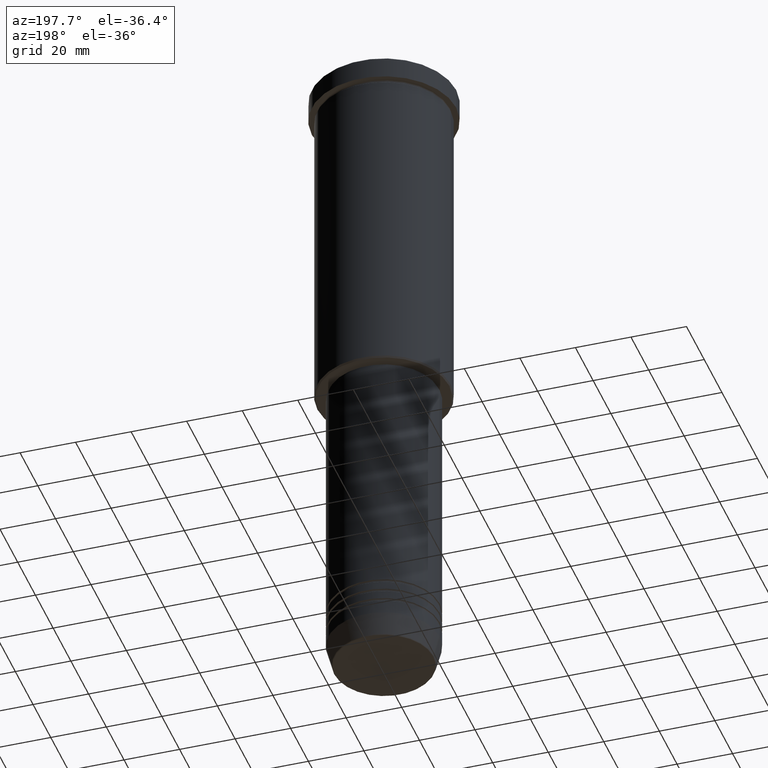
[diagram: clean part render]
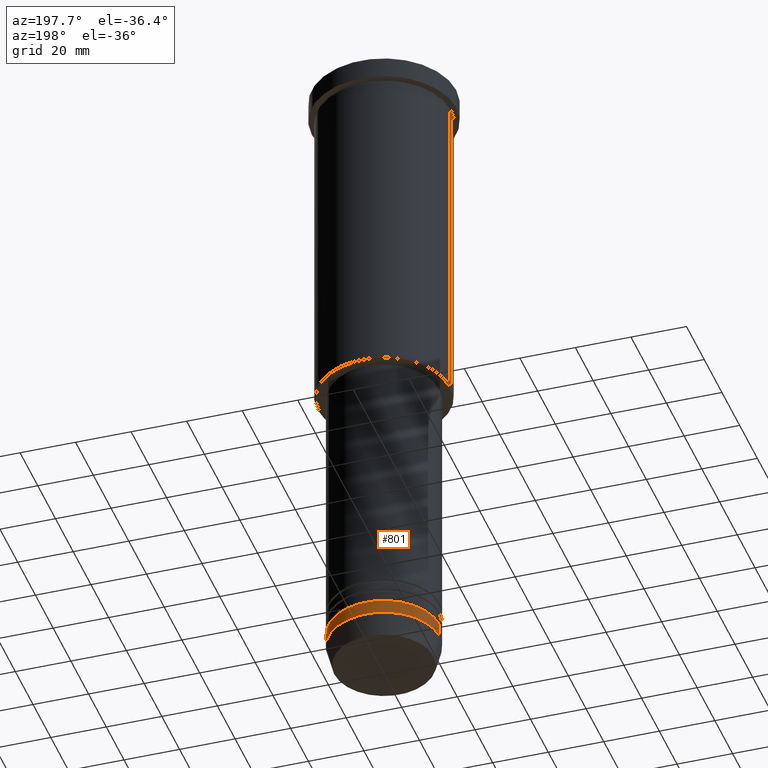
[diagram: same view with one face highlighted and labeled with its STEP entity id]
A machine part, auxiliary view. The second image highlights one B-rep face of the part: STEP entity #801.
In plain terms, the highlighted cylindrical surface (partial cylindrical patch) has radius 20 mm, axis along (-0, -0, 1).
Its self-contained STEP definition (entity closure, byte-faithful):
#96 = EDGE_CURVE ( 'NONE', #1000, #844, #231, .T. ) ;
#113 = AXIS2_PLACEMENT_3D ( 'NONE', #699, #1052, #777 ) ;
#159 = CARTESIAN_POINT ( 'NONE',  ( -20.00000000000000355, 2.449293598294706907E-15, 0.000000000000000000 ) ) ;
#198 = CARTESIAN_POINT ( 'NONE',  ( -20.00000000000000355, 2.449293598294706907E-15, -232.0000000000000000 ) ) ;
#231 = LINE ( 'NONE', #769, #905 ) ;
#346 = DIRECTION ( 'NONE',  ( 1.000000000000000000, 0.000000000000000000, 0.000000000000000000 ) ) ;
#361 = EDGE_CURVE ( 'NONE', #844, #610, #997, .T. ) ;
#374 = FACE_OUTER_BOUND ( 'NONE', #419, .T. ) ;
#389 = ORIENTED_EDGE ( 'NONE', *, *, #1044, .T. ) ;
#394 = VECTOR ( 'NONE', #883, 1000.000000000000000 ) ;
#419 = EDGE_LOOP ( 'NONE', ( #934, #389, #1144, #771 ) ) ;
#437 = CARTESIAN_POINT ( 'NONE',  ( 0.000000000000000000, 0.000000000000000000, -227.0000000000000000 ) ) ;
#474 = AXIS2_PLACEMENT_3D ( 'NONE', #437, #1166, #346 ) ;
#492 = AXIS2_PLACEMENT_3D ( 'NONE', #1101, #1009, #1020 ) ;
#506 = CARTESIAN_POINT ( 'NONE',  ( 20.00000000000000355, 0.000000000000000000, -232.0000000000000000 ) ) ;
#593 = DIRECTION ( 'NONE',  ( -0.000000000000000000, -0.000000000000000000, 1.000000000000000000 ) ) ;
#602 = VERTEX_POINT ( 'NONE', #198 ) ;
#610 = VERTEX_POINT ( 'NONE', #670 ) ;
#670 = CARTESIAN_POINT ( 'NONE',  ( -20.00000000000000000, 2.449293598294706513E-15, -227.0000000000000000 ) ) ;
#699 = CARTESIAN_POINT ( 'NONE',  ( 0.000000000000000000, 0.000000000000000000, -232.0000000000000000 ) ) ;
#736 = CYLINDRICAL_SURFACE ( 'NONE', #492, 20.00000000000000355 ) ;
#769 = CARTESIAN_POINT ( 'NONE',  ( 20.00000000000000355, 0.000000000000000000, 0.000000000000000000 ) ) ;
#771 = ORIENTED_EDGE ( 'NONE', *, *, #96, .F. ) ;
#777 = DIRECTION ( 'NONE',  ( 1.000000000000000000, 0.000000000000000000, 0.000000000000000000 ) ) ;
#801 = ADVANCED_FACE ( 'NONE', ( #374 ), #736, .T. ) ;
#844 = VERTEX_POINT ( 'NONE', #929 ) ;
#883 = DIRECTION ( 'NONE',  ( -0.000000000000000000, -0.000000000000000000, 1.000000000000000000 ) ) ;
#905 = VECTOR ( 'NONE', #593, 1000.000000000000000 ) ;
#910 = CIRCLE ( 'NONE', #113, 20.00000000000000355 ) ;
#929 = CARTESIAN_POINT ( 'NONE',  ( 20.00000000000000000, 0.000000000000000000, -227.0000000000000000 ) ) ;
#934 = ORIENTED_EDGE ( 'NONE', *, *, #1006, .T. ) ;
#970 = LINE ( 'NONE', #159, #394 ) ;
#997 = CIRCLE ( 'NONE', #474, 20.00000000000000000 ) ;
#1000 = VERTEX_POINT ( 'NONE', #506 ) ;
#1006 = EDGE_CURVE ( 'NONE', #1000, #602, #910, .T. ) ;
#1009 = DIRECTION ( 'NONE',  ( -0.000000000000000000, -0.000000000000000000, 1.000000000000000000 ) ) ;
#1020 = DIRECTION ( 'NONE',  ( 1.000000000000000000, 0.000000000000000000, 0.000000000000000000 ) ) ;
#1044 = EDGE_CURVE ( 'NONE', #602, #610, #970, .T. ) ;
#1052 = DIRECTION ( 'NONE',  ( -0.000000000000000000, -0.000000000000000000, 1.000000000000000000 ) ) ;
#1101 = CARTESIAN_POINT ( 'NONE',  ( 0.000000000000000000, 0.000000000000000000, 0.000000000000000000 ) ) ;
#1144 = ORIENTED_EDGE ( 'NONE', *, *, #361, .F. ) ;
#1166 = DIRECTION ( 'NONE',  ( -0.000000000000000000, -0.000000000000000000, 1.000000000000000000 ) ) ;